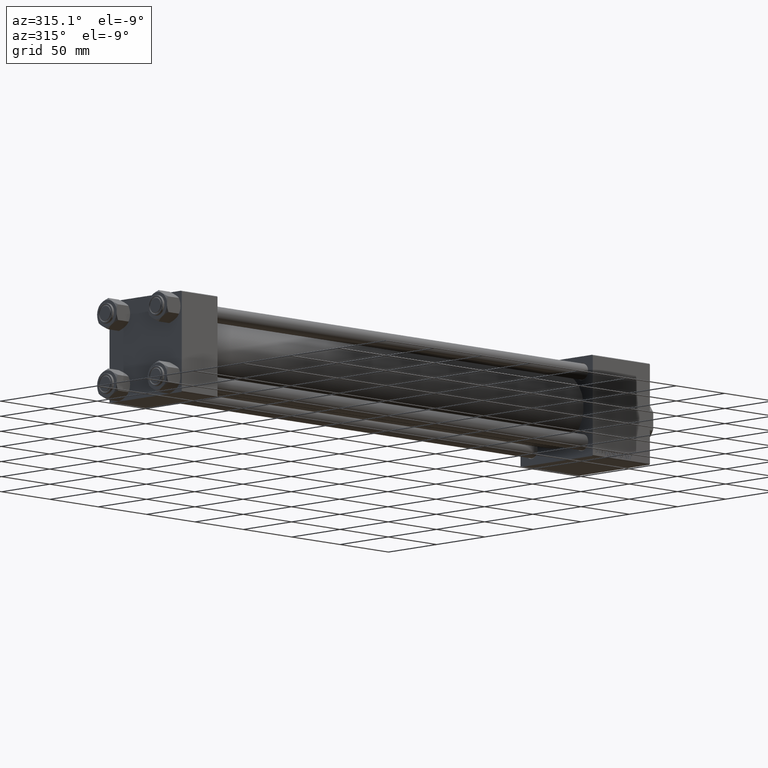
[diagram: clean part render]
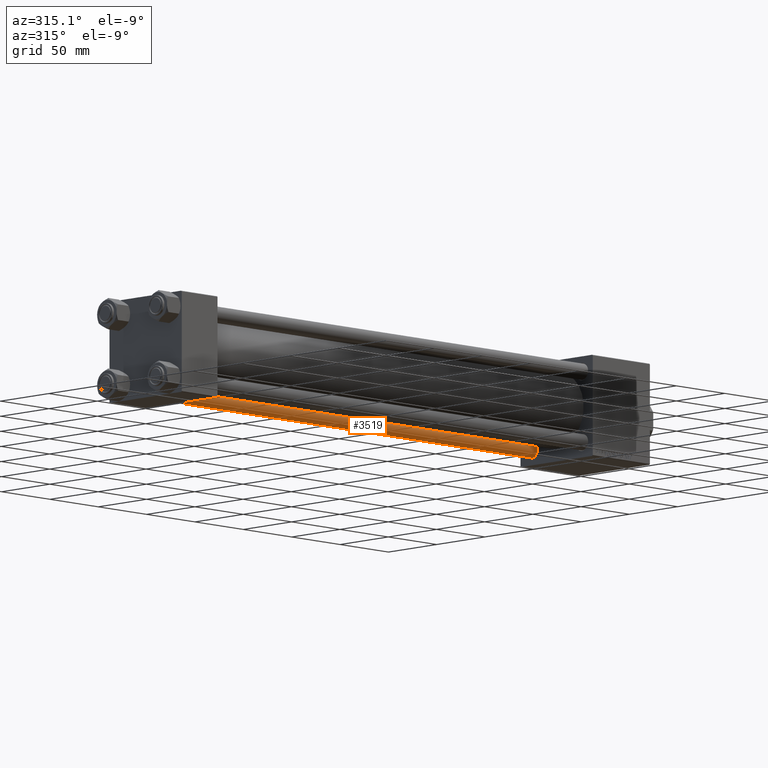
[diagram: same view with one face highlighted and labeled with its STEP entity id]
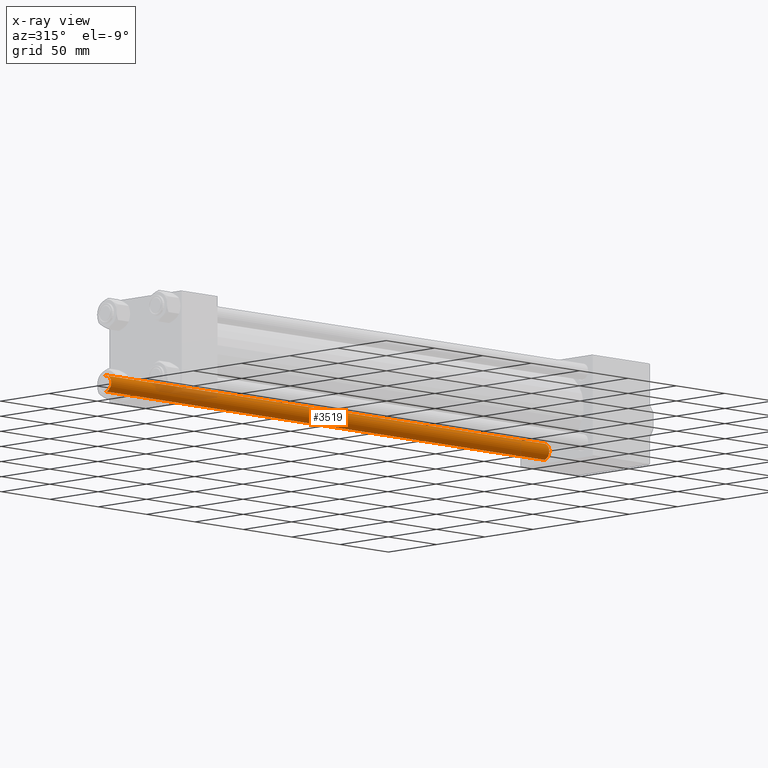
[diagram: x-ray of the same camera — body ghosted, the highlighted face saturated]
A machine part, auxiliary view. The second image highlights one B-rep face of the part: STEP entity #3519.
The next image is the same camera in x-ray: the body ghosted, the highlighted face saturated — about 11% of this face is hidden behind the body in this view.
In plain terms, the highlighted cylindrical surface (edge-blend (fillet) strip) has radius 6 mm, axis along (1, -0, 0).
Its self-contained STEP definition (entity closure, byte-faithful):
#537 = CARTESIAN_POINT ( 'NONE',  ( 0.000000000000000000, 0.000000000000000000, 454.0000000000000000 ) ) ;
#666 = VERTEX_POINT ( 'NONE', #31153 ) ;
#794 = DIRECTION ( 'NONE',  ( 1.000000000000000000, 0.000000000000000000, 0.000000000000000000 ) ) ;
#3519 = ADVANCED_FACE ( 'NONE', ( #35320 ), #20079, .T. ) ;
#5349 = CARTESIAN_POINT ( 'NONE',  ( 0.000000000000000000, 0.000000000000000000, 0.5000000000004445333 ) ) ;
#5367 = ORIENTED_EDGE ( 'NONE', *, *, #50216, .F. ) ;
#5970 = EDGE_CURVE ( 'NONE', #43109, #666, #30136, .T. ) ;
#6168 = VECTOR ( 'NONE', #9996, 1000.000000000000000 ) ;
#9996 = DIRECTION ( 'NONE',  ( -0.000000000000000000, -0.000000000000000000, -1.000000000000000000 ) ) ;
#13552 = CARTESIAN_POINT ( 'NONE',  ( -6.000000000000000888, 0.000000000000000000, 454.0000000000000000 ) ) ;
#14017 = CARTESIAN_POINT ( 'NONE',  ( 0.000000000000000000, 0.000000000000000000, 453.5000000000002842 ) ) ;
#17551 = VECTOR ( 'NONE', #49485, 1000.000000000000000 ) ;
#17850 = CARTESIAN_POINT ( 'NONE',  ( 6.000000000000000888, 7.347880794884119736E-16, 453.5000000000002842 ) ) ;
#19778 = ORIENTED_EDGE ( 'NONE', *, *, #20931, .T. ) ;
#20079 = CYLINDRICAL_SURFACE ( 'NONE', #20292, 6.000000000000000888 ) ;
#20292 = AXIS2_PLACEMENT_3D ( 'NONE', #537, #39626, #31751 ) ;
#20931 = EDGE_CURVE ( 'NONE', #666, #37805, #32846, .T. ) ;
#21210 = AXIS2_PLACEMENT_3D ( 'NONE', #14017, #29506, #25198 ) ;
#21768 = EDGE_LOOP ( 'NONE', ( #5367, #32246, #19778, #32690 ) ) ;
#22301 = AXIS2_PLACEMENT_3D ( 'NONE', #5349, #23907, #794 ) ;
#23907 = DIRECTION ( 'NONE',  ( -0.000000000000000000, -0.000000000000000000, 1.000000000000000000 ) ) ;
#25198 = DIRECTION ( 'NONE',  ( 1.000000000000000000, 0.000000000000000000, 0.000000000000000000 ) ) ;
#26148 = LINE ( 'NONE', #41629, #17551 ) ;
#27548 = CARTESIAN_POINT ( 'NONE',  ( -6.000000000000000888, 0.000000000000000000, 0.5000000000004445333 ) ) ;
#29506 = DIRECTION ( 'NONE',  ( 0.000000000000000000, 0.000000000000000000, -1.000000000000000000 ) ) ;
#30136 = CIRCLE ( 'NONE', #21210, 6.000000000000000888 ) ;
#31153 = CARTESIAN_POINT ( 'NONE',  ( -6.000000000000000888, 0.000000000000000000, 453.5000000000002842 ) ) ;
#31751 = DIRECTION ( 'NONE',  ( -1.000000000000000000, 0.000000000000000000, 0.000000000000000000 ) ) ;
#32246 = ORIENTED_EDGE ( 'NONE', *, *, #5970, .T. ) ;
#32690 = ORIENTED_EDGE ( 'NONE', *, *, #43298, .T. ) ;
#32846 = LINE ( 'NONE', #13552, #6168 ) ;
#35320 = FACE_OUTER_BOUND ( 'NONE', #21768, .T. ) ;
#35476 = VERTEX_POINT ( 'NONE', #45604 ) ;
#37714 = CIRCLE ( 'NONE', #22301, 6.000000000000000888 ) ;
#37805 = VERTEX_POINT ( 'NONE', #27548 ) ;
#39626 = DIRECTION ( 'NONE',  ( -0.000000000000000000, -0.000000000000000000, -1.000000000000000000 ) ) ;
#41629 = CARTESIAN_POINT ( 'NONE',  ( 6.000000000000000888, 7.347880794884119736E-16, 454.0000000000000000 ) ) ;
#43109 = VERTEX_POINT ( 'NONE', #17850 ) ;
#43298 = EDGE_CURVE ( 'NONE', #37805, #35476, #37714, .T. ) ;
#45604 = CARTESIAN_POINT ( 'NONE',  ( 6.000000000000000888, 7.347880794884119736E-16, 0.5000000000004445333 ) ) ;
#49485 = DIRECTION ( 'NONE',  ( -0.000000000000000000, -0.000000000000000000, -1.000000000000000000 ) ) ;
#50216 = EDGE_CURVE ( 'NONE', #43109, #35476, #26148, .T. ) ;